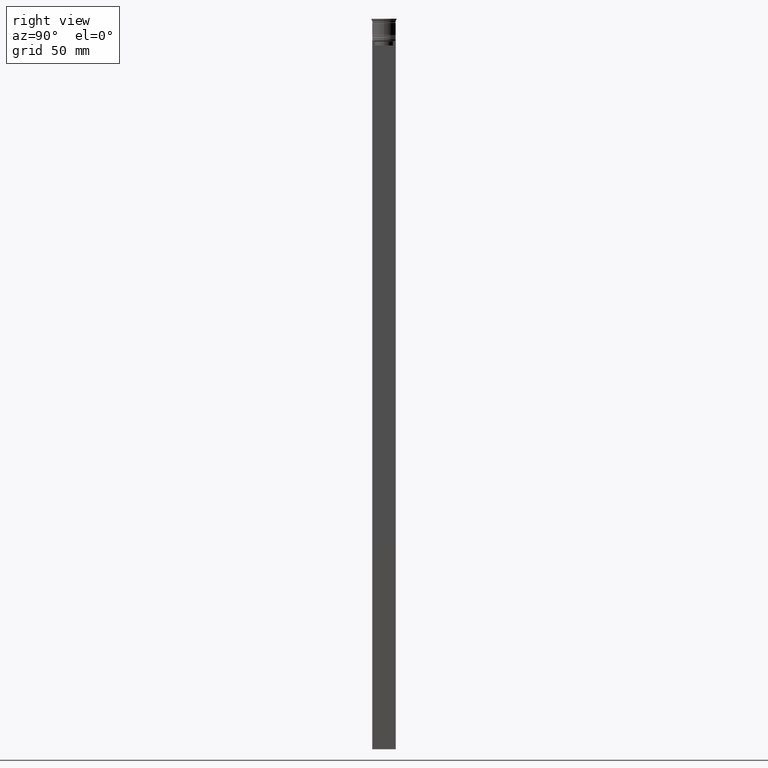
[diagram: clean part render]
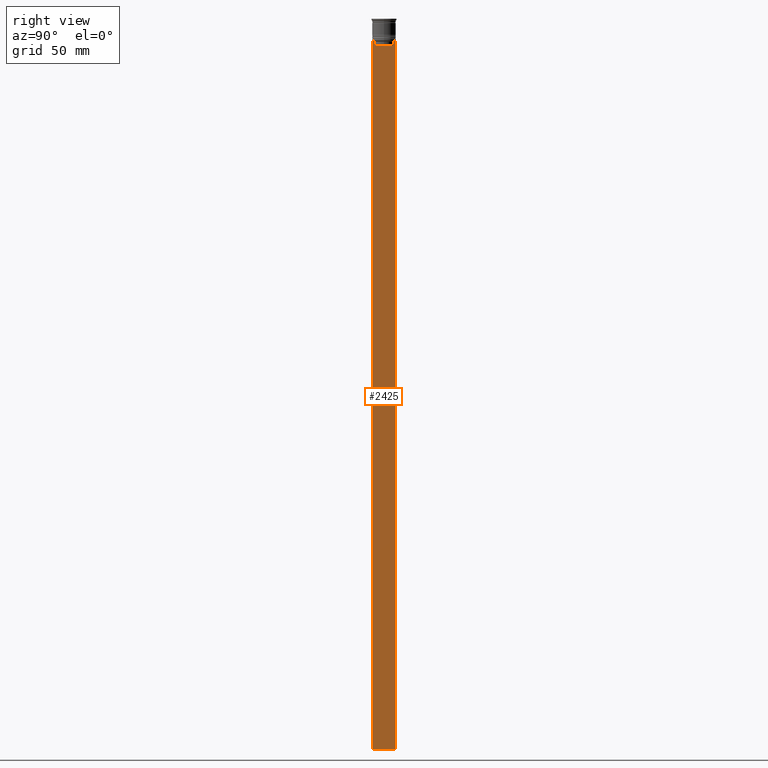
[diagram: same view with one face highlighted and labeled with its STEP entity id]
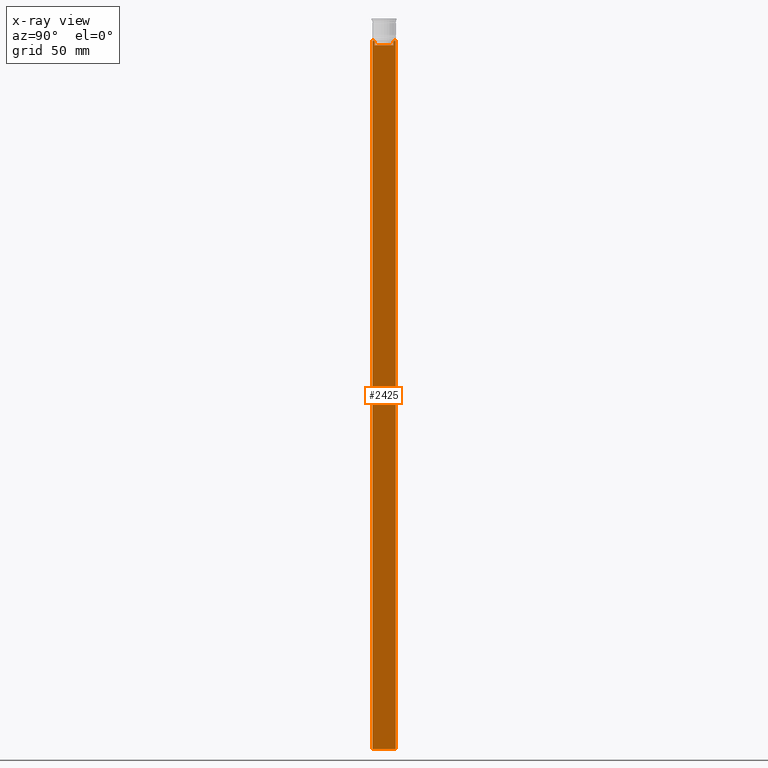
[diagram: x-ray of the same camera — body ghosted, the highlighted face saturated]
A machine part, right view. The second image highlights one B-rep face of the part: STEP entity #2425.
The next image is the same camera in x-ray: the body ghosted, the highlighted face saturated — about 0% of this face is hidden behind the body in this view.
In plain terms, the highlighted planar face has unit normal (-1, 0, 0).
Its self-contained STEP definition (entity closure, byte-faithful):
#1 = LINE ( 'NONE', #777, #2097 ) ;
#82 = ORIENTED_EDGE ( 'NONE', *, *, #303, .T. ) ;
#106 = ORIENTED_EDGE ( 'NONE', *, *, #2241, .T. ) ;
#141 = CARTESIAN_POINT ( 'NONE',  ( 0.5000000000000000000, 5.899999999999998579, -17.00000000000000000 ) ) ;
#303 = EDGE_CURVE ( 'NONE', #420, #344, #2336, .T. ) ;
#343 = CARTESIAN_POINT ( 'NONE',  ( 0.5000000000000000000, -6.380438856379706536, -14.00000000000000178 ) ) ;
#344 = VERTEX_POINT ( 'NONE', #818 ) ;
#348 = CARTESIAN_POINT ( 'NONE',  ( 0.5000000000000000000, 7.383088784512886527, -14.00000000000000178 ) ) ;
#357 = B_SPLINE_CURVE_WITH_KNOTS ( 'NONE', 3,
 ( #634, #1598, #465, #1411 ),
 .UNSPECIFIED., .F., .F.,
 ( 4, 4 ),
 ( 0.02765270321082434479, 0.02836198271238431559 ),
 .UNSPECIFIED. ) ;
#388 = FACE_OUTER_BOUND ( 'NONE', #1426, .T. ) ;
#413 = EDGE_CURVE ( 'NONE', #545, #420, #1053, .T. ) ;
#420 = VERTEX_POINT ( 'NONE', #1664 ) ;
#465 = CARTESIAN_POINT ( 'NONE',  ( 0.5000000000000000000, -6.213239311785844876, -14.16668851110870087 ) ) ;
#545 = VERTEX_POINT ( 'NONE', #2243 ) ;
#571 = VECTOR ( 'NONE', #2143, 1000.000000000000000 ) ;
#578 = LINE ( 'NONE', #2334, #1488 ) ;
#619 = CARTESIAN_POINT ( 'NONE',  ( 0.5000000000000000000, -7.499999999999999112, -14.00000000000000178 ) ) ;
#634 = CARTESIAN_POINT ( 'NONE',  ( 0.5000000000000000000, -5.878775382679625849, -14.50000000000000000 ) ) ;
#662 = LINE ( 'NONE', #2007, #2410 ) ;
#724 = CARTESIAN_POINT ( 'NONE',  ( 0.5000000000000000000, -7.499999999999999112, 1.033296378372908997 ) ) ;
#742 = ORIENTED_EDGE ( 'NONE', *, *, #1953, .T. ) ;
#754 = CARTESIAN_POINT ( 'NONE',  ( 0.5000000000000000000, -7.499999999999999112, -464.0000000000000000 ) ) ;
#767 = DIRECTION ( 'NONE',  ( 0.000000000000000000, -1.000000000000000000, 0.000000000000000000 ) ) ;
#777 = CARTESIAN_POINT ( 'NONE',  ( 0.5000000000000000000, -7.499999999999999112, -14.00000000000000178 ) ) ;
#784 = ORIENTED_EDGE ( 'NONE', *, *, #2062, .T. ) ;
#799 = VECTOR ( 'NONE', #1509, 1000.000000000000000 ) ;
#818 = CARTESIAN_POINT ( 'NONE',  ( 0.5000000000000000000, -5.878775382679625849, -14.50000000000000000 ) ) ;
#839 = LINE ( 'NONE', #619, #571 ) ;
#892 = ORIENTED_EDGE ( 'NONE', *, *, #413, .T. ) ;
#935 = DIRECTION ( 'NONE',  ( 0.000000000000000000, 1.000000000000000000, 0.000000000000000000 ) ) ;
#1047 = VECTOR ( 'NONE', #935, 1000.000000000000000 ) ;
#1053 = LINE ( 'NONE', #141, #1363 ) ;
#1092 = EDGE_CURVE ( 'NONE', #2180, #1119, #2152, .T. ) ;
#1105 = LINE ( 'NONE', #724, #799 ) ;
#1113 = DIRECTION ( 'NONE',  ( 0.000000000000000000, 0.000000000000000000, 1.000000000000000000 ) ) ;
#1119 = VERTEX_POINT ( 'NONE', #2282 ) ;
#1138 = DIRECTION ( 'NONE',  ( -1.000000000000000000, 0.000000000000000000, 0.000000000000000000 ) ) ;
#1146 = PLANE ( 'NONE',  #1934 ) ;
#1150 = CARTESIAN_POINT ( 'NONE',  ( 0.5000000000000000000, 7.500000000000002665, -14.00000000000000178 ) ) ;
#1152 = DIRECTION ( 'NONE',  ( 0.000000000000000000, -1.000000000000000000, 0.000000000000000000 ) ) ;
#1197 = CARTESIAN_POINT ( 'NONE',  ( 0.5000000000000000000, 6.380438856379706536, -14.00000000000000178 ) ) ;
#1232 = VERTEX_POINT ( 'NONE', #343 ) ;
#1242 = ORIENTED_EDGE ( 'NONE', *, *, #1416, .F. ) ;
#1262 = EDGE_CURVE ( 'NONE', #2362, #2180, #578, .T. ) ;
#1301 = DIRECTION ( 'NONE',  ( 0.000000000000000000, -1.000000000000000000, 0.000000000000000000 ) ) ;
#1355 = CARTESIAN_POINT ( 'NONE',  ( 0.5000000000000000000, -7.499999999999999112, 1.033296378372908997 ) ) ;
#1363 = VECTOR ( 'NONE', #1301, 1000.000000000000000 ) ;
#1410 = DIRECTION ( 'NONE',  ( 0.000000000000000000, 0.000000000000000000, -1.000000000000000000 ) ) ;
#1411 = CARTESIAN_POINT ( 'NONE',  ( 0.5000000000000000000, -6.380438856379706536, -14.00000000000000178 ) ) ;
#1415 = ORIENTED_EDGE ( 'NONE', *, *, #1476, .T. ) ;
#1416 = EDGE_CURVE ( 'NONE', #2072, #1921, #662, .T. ) ;
#1426 = EDGE_LOOP ( 'NONE', ( #2475, #1611, #2205, #892, #82, #1415, #106, #2340, #742, #784, #1242, #1579 ) ) ;
#1465 = CARTESIAN_POINT ( 'NONE',  ( 0.5000000000000000000, 6.046020074006152711, -14.33335695351623151 ) ) ;
#1475 = CARTESIAN_POINT ( 'NONE',  ( 0.5000000000000000000, 5.878775382679625849, -14.50000000000000000 ) ) ;
#1476 = EDGE_CURVE ( 'NONE', #344, #1232, #357, .T. ) ;
#1486 = DIRECTION ( 'NONE',  ( 0.000000000000000000, -1.000000000000000000, 0.000000000000000000 ) ) ;
#1488 = VECTOR ( 'NONE', #1152, 1000.000000000000000 ) ;
#1500 = LINE ( 'NONE', #754, #1047 ) ;
#1509 = DIRECTION ( 'NONE',  ( 0.000000000000000000, 0.000000000000000000, -1.000000000000000000 ) ) ;
#1567 = VERTEX_POINT ( 'NONE', #2191 ) ;
#1579 = ORIENTED_EDGE ( 'NONE', *, *, #2037, .T. ) ;
#1598 = CARTESIAN_POINT ( 'NONE',  ( 0.5000000000000000000, -6.046019991840948293, -14.33335703538585726 ) ) ;
#1604 = VERTEX_POINT ( 'NONE', #2154 ) ;
#1611 = ORIENTED_EDGE ( 'NONE', *, *, #1092, .T. ) ;
#1664 = CARTESIAN_POINT ( 'NONE',  ( 0.5000000000000000000, -5.878775382679625849, -17.00000000000000000 ) ) ;
#1704 = EDGE_CURVE ( 'NONE', #1119, #545, #1814, .T. ) ;
#1722 = VECTOR ( 'NONE', #1486, 1000.000000000000000 ) ;
#1771 = CARTESIAN_POINT ( 'NONE',  ( 0.5000000000000000000, -7.499999999999999112, -464.0000000000000000 ) ) ;
#1772 = CARTESIAN_POINT ( 'NONE',  ( 0.5000000000000000000, 5.878775382679625849, 0.000000000000000000 ) ) ;
#1802 = CARTESIAN_POINT ( 'NONE',  ( 0.5000000000000000000, -5.878775382679625849, 0.000000000000000000 ) ) ;
#1812 = CARTESIAN_POINT ( 'NONE',  ( 0.5000000000000000000, -7.499999999999999112, -14.00000000000000178 ) ) ;
#1814 = LINE ( 'NONE', #1772, #2292 ) ;
#1921 = VERTEX_POINT ( 'NONE', #2408 ) ;
#1934 = AXIS2_PLACEMENT_3D ( 'NONE', #1355, #1138, #1113 ) ;
#1953 = EDGE_CURVE ( 'NONE', #1604, #2188, #1105, .T. ) ;
#1983 = DIRECTION ( 'NONE',  ( -0.000000000000000000, -0.000000000000000000, 1.000000000000000000 ) ) ;
#2007 = CARTESIAN_POINT ( 'NONE',  ( 0.5000000000000000000, 7.500000000000002665, 1.033296378372908997 ) ) ;
#2022 = DIRECTION ( 'NONE',  ( 0.000000000000000000, 0.000000000000000000, -1.000000000000000000 ) ) ;
#2037 = EDGE_CURVE ( 'NONE', #2072, #2362, #1, .T. ) ;
#2044 = LINE ( 'NONE', #1812, #1722 ) ;
#2062 = EDGE_CURVE ( 'NONE', #2188, #1921, #1500, .T. ) ;
#2072 = VERTEX_POINT ( 'NONE', #1150 ) ;
#2076 = CARTESIAN_POINT ( 'NONE',  ( 0.5000000000000000000, 6.213239387491007015, -14.16668843563492430 ) ) ;
#2088 = VECTOR ( 'NONE', #1983, 1000.000000000000000 ) ;
#2097 = VECTOR ( 'NONE', #767, 1000.000000000000000 ) ;
#2143 = DIRECTION ( 'NONE',  ( 0.000000000000000000, -1.000000000000000000, 0.000000000000000000 ) ) ;
#2152 = B_SPLINE_CURVE_WITH_KNOTS ( 'NONE', 3,
 ( #2471, #2076, #1465, #1475 ),
 .UNSPECIFIED., .F., .F.,
 ( 4, 4 ),
 ( 0.01087727669788152163, 0.01158556069794289788 ),
 .UNSPECIFIED. ) ;
#2154 = CARTESIAN_POINT ( 'NONE',  ( 0.5000000000000000000, -7.499999999999999112, -14.00000000000000178 ) ) ;
#2163 = EDGE_CURVE ( 'NONE', #1567, #1604, #839, .T. ) ;
#2180 = VERTEX_POINT ( 'NONE', #1197 ) ;
#2188 = VERTEX_POINT ( 'NONE', #1771 ) ;
#2191 = CARTESIAN_POINT ( 'NONE',  ( 0.5000000000000000000, -7.383088784512886527, -14.00000000000000178 ) ) ;
#2205 = ORIENTED_EDGE ( 'NONE', *, *, #1704, .T. ) ;
#2241 = EDGE_CURVE ( 'NONE', #1232, #1567, #2044, .T. ) ;
#2243 = CARTESIAN_POINT ( 'NONE',  ( 0.5000000000000000000, 5.878775382679625849, -17.00000000000000000 ) ) ;
#2282 = CARTESIAN_POINT ( 'NONE',  ( 0.5000000000000000000, 5.878775382679625849, -14.50000000000000000 ) ) ;
#2292 = VECTOR ( 'NONE', #1410, 1000.000000000000000 ) ;
#2334 = CARTESIAN_POINT ( 'NONE',  ( 0.5000000000000000000, -7.499999999999999112, -14.00000000000000178 ) ) ;
#2336 = LINE ( 'NONE', #1802, #2088 ) ;
#2340 = ORIENTED_EDGE ( 'NONE', *, *, #2163, .T. ) ;
#2362 = VERTEX_POINT ( 'NONE', #348 ) ;
#2408 = CARTESIAN_POINT ( 'NONE',  ( 0.5000000000000000000, 7.500000000000002665, -464.0000000000000000 ) ) ;
#2410 = VECTOR ( 'NONE', #2022, 1000.000000000000000 ) ;
#2425 = ADVANCED_FACE ( 'NONE', ( #388 ), #1146, .F. ) ;
#2471 = CARTESIAN_POINT ( 'NONE',  ( 0.5000000000000000000, 6.380438856379706536, -14.00000000000000178 ) ) ;
#2475 = ORIENTED_EDGE ( 'NONE', *, *, #1262, .T. ) ;